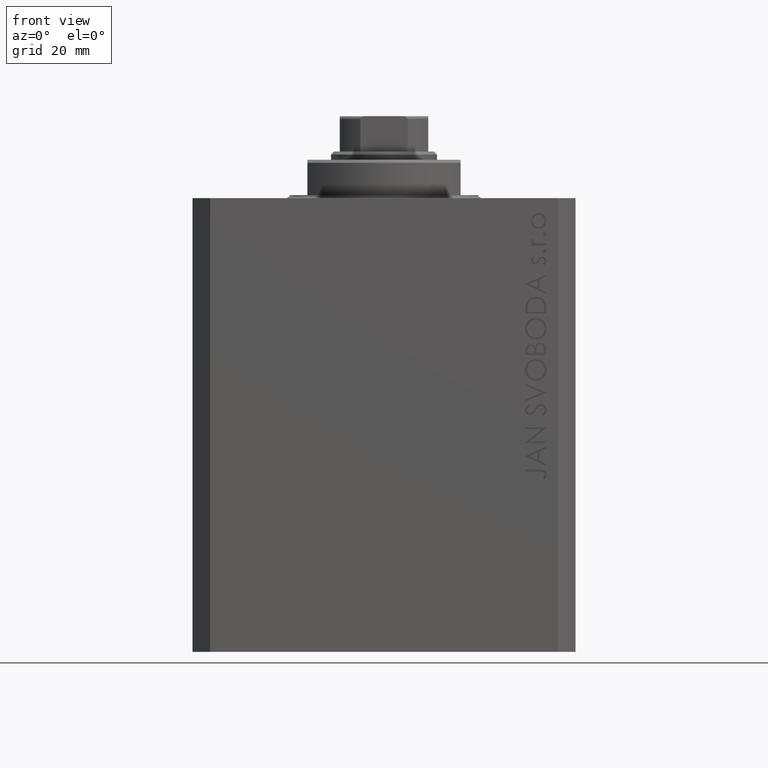
[diagram: clean part render]
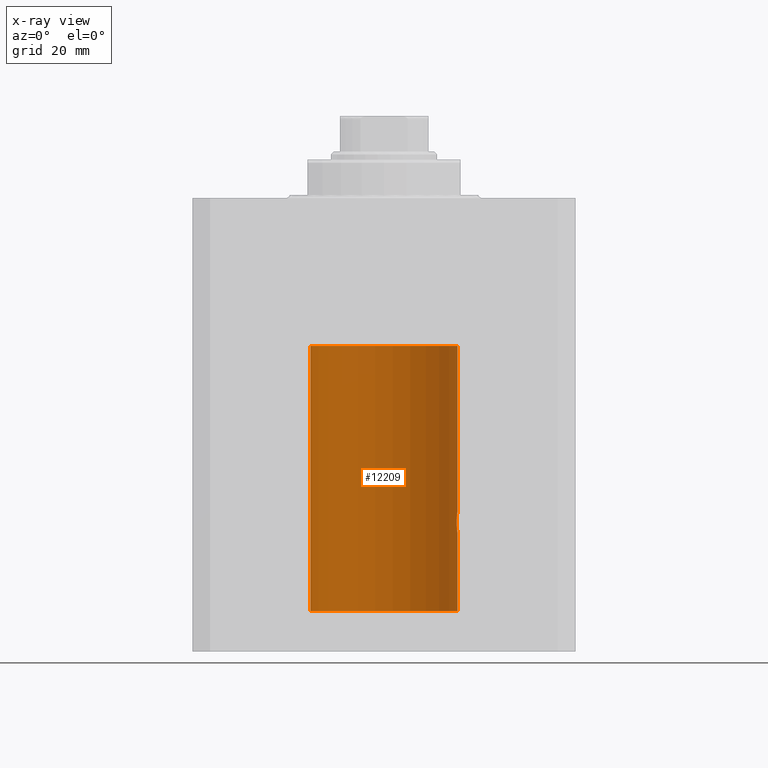
[diagram: x-ray — body ghosted, one internal face saturated and labeled with its STEP entity id]
A machine part, front view, then the same camera in x-ray: the body is ghosted and one INTERNAL B-rep face — a face not visible from any outside direction — is saturated and labeled: STEP entity #12209.
In plain terms, the highlighted cylindrical surface (partial cylindrical patch) has radius 12.5 mm, axis along (0, 0, 1).
Its self-contained STEP definition (entity closure, byte-faithful):
#63 = CARTESIAN_POINT ( 'NONE',  ( 12.49789833780794446, 0.2625555164371062844, -56.98698170822145670 ) ) ;
#77 = CIRCLE ( 'NONE', #847, 12.50000000000000000 ) ;
#248 = CARTESIAN_POINT ( 'NONE',  ( 12.37021546997940113, 1.797317011867410219, -54.11295119741077286 ) ) ;
#847 = AXIS2_PLACEMENT_3D ( 'NONE', #24208, #6041, #13211 ) ;
#3588 = CARTESIAN_POINT ( 'NONE',  ( 12.34924836377099844, 1.935649219704940194, -54.48002062127162759 ) ) ;
#3722 = DIRECTION ( 'NONE',  ( 1.000000000000000000, 0.000000000000000000, 0.000000000000000000 ) ) ;
#3745 = VERTEX_POINT ( 'NONE', #35879 ) ;
#3885 = CARTESIAN_POINT ( 'NONE',  ( 12.43016561391612207, 1.322713721413891319, -56.50578877836699121 ) ) ;
#4223 = EDGE_CURVE ( 'NONE', #22903, #9330, #45205, .T. ) ;
#4986 = CARTESIAN_POINT ( 'NONE',  ( 12.50000000000000000, 0.000000000000000000, -70.09999999999999432 ) ) ;
#5665 = AXIS2_PLACEMENT_3D ( 'NONE', #43595, #36419, #3722 ) ;
#6041 = DIRECTION ( 'NONE',  ( 0.000000000000000000, 0.000000000000000000, 1.000000000000000000 ) ) ;
#7183 = CARTESIAN_POINT ( 'NONE',  ( 12.33896267925302226, 2.000000000000254463, -54.86934705949917657 ) ) ;
#7328 = B_SPLINE_CURVE_WITH_KNOTS ( 'NONE', 3,
 ( #43465, #7183, #21743, #3588, #43930, #248, #14810, #22213, #18386, #44166, #32476, #17929, #22459, #18144, #17701, #46827, #11213, #14120 ),
 .UNSPECIFIED., .F., .F.,
 ( 4, 2, 2, 2, 2, 2, 2, 2, 4 ),
 ( 0.003132244164174471934, 0.003523586189974247697, 0.003914928215774023459, 0.004306270241573798355, 0.004697612267373574985, 0.005088954293173349880, 0.005480296318973125642, 0.005871638344772901405, 0.006262980370572677168 ),
 .UNSPECIFIED. ) ;
#7340 = VERTEX_POINT ( 'NONE', #20286 ) ;
#7467 = CARTESIAN_POINT ( 'NONE',  ( 12.48390005916862755, 0.6457215011736598953, -56.89742771554266199 ) ) ;
#8142 = CARTESIAN_POINT ( 'NONE',  ( 12.50000000000000000, 0.000000000000000000, -70.09999999999999432 ) ) ;
#9234 = VERTEX_POINT ( 'NONE', #32763 ) ;
#9330 = VERTEX_POINT ( 'NONE', #28465 ) ;
#10118 = EDGE_CURVE ( 'NONE', #22903, #3745, #26291, .T. ) ;
#10176 = DIRECTION ( 'NONE',  ( 1.000000000000000000, 0.000000000000000000, 0.000000000000000000 ) ) ;
#10366 = VECTOR ( 'NONE', #27656, 1000.000000000000000 ) ;
#11213 = CARTESIAN_POINT ( 'NONE',  ( 12.50000000000000000, 0.1306079576516681051, -52.99999999999999289 ) ) ;
#12209 = ADVANCED_FACE ( 'NONE', ( #29032 ), #36199, .F. ) ;
#13211 = DIRECTION ( 'NONE',  ( 1.000000000000000000, 0.000000000000000000, 0.000000000000000000 ) ) ;
#14120 = CARTESIAN_POINT ( 'NONE',  ( 12.50000000000000000, -7.266276684081261841E-23, -53.00000000000000000 ) ) ;
#14307 = VERTEX_POINT ( 'NONE', #33695 ) ;
#14628 = CARTESIAN_POINT ( 'NONE',  ( 12.48989642018887736, 0.5185418732824300658, -56.93601292187608465 ) ) ;
#14810 = CARTESIAN_POINT ( 'NONE',  ( 12.37925647381943506, 1.734744884174225898, -53.99620732598648942 ) ) ;
#15534 = VECTOR ( 'NONE', #41312, 1000.000000000000000 ) ;
#15549 = ORIENTED_EDGE ( 'NONE', *, *, #29803, .T. ) ;
#15763 = EDGE_CURVE ( 'NONE', #18019, #9234, #23148, .T. ) ;
#15997 = CARTESIAN_POINT ( 'NONE',  ( -12.50000000000000000, 1.530808498934191127E-15, -70.09999999999999432 ) ) ;
#16234 = AXIS2_PLACEMENT_3D ( 'NONE', #46929, #42647, #10176 ) ;
#16655 = ORIENTED_EDGE ( 'NONE', *, *, #4223, .F. ) ;
#16905 = ORIENTED_EDGE ( 'NONE', *, *, #22912, .F. ) ;
#17632 = ORIENTED_EDGE ( 'NONE', *, *, #21393, .T. ) ;
#17701 = CARTESIAN_POINT ( 'NONE',  ( 12.48983962833819028, 0.5199974825204921602, -53.06435160808016605 ) ) ;
#17929 = CARTESIAN_POINT ( 'NONE',  ( 12.46011632531799407, 1.003644408234889429, -53.26516799687669135 ) ) ;
#17980 = CARTESIAN_POINT ( 'NONE',  ( 12.46901623405143766, 0.8878913781257957716, -56.79689651717549737 ) ) ;
#18019 = VERTEX_POINT ( 'NONE', #22417 ) ;
#18144 = CARTESIAN_POINT ( 'NONE',  ( 12.48395395845270528, 0.6446573166014709644, -53.10222124213520090 ) ) ;
#18386 = CARTESIAN_POINT ( 'NONE',  ( 12.40916530024876963, 1.507117913375724649, -53.67865955049006033 ) ) ;
#20286 = CARTESIAN_POINT ( 'NONE',  ( 12.33896267925302581, 2.000000000000254463, -55.00000000000000000 ) ) ;
#21043 = ORIENTED_EDGE ( 'NONE', *, *, #10118, .T. ) ;
#21335 = CARTESIAN_POINT ( 'NONE',  ( 12.46019522898365217, 1.002712894177341107, -56.73540896027601832 ) ) ;
#21393 = EDGE_CURVE ( 'NONE', #7340, #18019, #7328, .T. ) ;
#21573 = CARTESIAN_POINT ( 'NONE',  ( 12.50000000000000000, -2.972540724237087735E-15, -57.00000000000000000 ) ) ;
#21743 = CARTESIAN_POINT ( 'NONE',  ( 12.34110728646152211, 1.986893050944461780, -54.73661347764981144 ) ) ;
#22213 = CARTESIAN_POINT ( 'NONE',  ( 12.39867611624532806, 1.590019252152835794, -53.77984495929610631 ) ) ;
#22417 = CARTESIAN_POINT ( 'NONE',  ( 12.50000000000000000, -7.266276684081261841E-23, -53.00000000000000000 ) ) ;
#22459 = CARTESIAN_POINT ( 'NONE',  ( 12.46910683544638232, 0.8866026273585058126, -53.20247863689694157 ) ) ;
#22903 = VERTEX_POINT ( 'NONE', #23190 ) ;
#22912 = EDGE_CURVE ( 'NONE', #9330, #14307, #38190, .T. ) ;
#23148 = LINE ( 'NONE', #4986, #10366 ) ;
#23190 = CARTESIAN_POINT ( 'NONE',  ( 12.50000000000000000, 0.000000000000000000, -70.09999999999999432 ) ) ;
#24208 = CARTESIAN_POINT ( 'NONE',  ( 0.000000000000000000, 0.000000000000000000, -25.10000000000000142 ) ) ;
#25166 = CARTESIAN_POINT ( 'NONE',  ( 12.33896267925302759, 2.000000000000254463, -55.26143174220786136 ) ) ;
#25624 = CARTESIAN_POINT ( 'NONE',  ( 12.34779119491631505, 1.947363444907015184, -55.52502775168252924 ) ) ;
#26291 = LINE ( 'NONE', #8142, #15534 ) ;
#27656 = DIRECTION ( 'NONE',  ( -0.000000000000000000, -0.000000000000000000, 1.000000000000000000 ) ) ;
#28465 = CARTESIAN_POINT ( 'NONE',  ( -12.50000000000000000, 1.530808498934191127E-15, -70.09999999999999432 ) ) ;
#28958 = CARTESIAN_POINT ( 'NONE',  ( 12.39869754437269123, 1.598954131913734145, -56.22932152813013573 ) ) ;
#29032 = FACE_OUTER_BOUND ( 'NONE', #40195, .T. ) ;
#29194 = CARTESIAN_POINT ( 'NONE',  ( 12.44079900692650753, 1.220007525301745277, -56.59017579083666760 ) ) ;
#29803 = EDGE_CURVE ( 'NONE', #9234, #14307, #77, .T. ) ;
#32307 = CARTESIAN_POINT ( 'NONE',  ( 12.50000000000000533, 0.1324055009716460785, -57.00000000000003553 ) ) ;
#32476 = CARTESIAN_POINT ( 'NONE',  ( 12.44079117518645461, 1.220047488436375227, -53.40989676335082237 ) ) ;
#32763 = CARTESIAN_POINT ( 'NONE',  ( 12.50000000000000000, 0.000000000000000000, -25.10000000000000142 ) ) ;
#33695 = CARTESIAN_POINT ( 'NONE',  ( -12.50000000000000000, 1.530808498934191127E-15, -25.10000000000000142 ) ) ;
#33760 = B_SPLINE_CURVE_WITH_KNOTS ( 'NONE', 3,
 ( #21573, #32307, #63, #14628, #7467, #17980, #21335, #29194, #3885, #28958, #43298, #25624, #25166, #40159 ),
 .UNSPECIFIED., .F., .F.,
 ( 4, 2, 2, 2, 2, 2, 4 ),
 ( 4.027442422438711134E-18, 0.0003915305205218086665, 0.0007830610410436133215, 0.001174591561565418085, 0.001566122082087222740, 0.002349183123130847445, 0.003132244164174471934 ),
 .UNSPECIFIED. ) ;
#34847 = DIRECTION ( 'NONE',  ( -0.000000000000000000, -0.000000000000000000, 1.000000000000000000 ) ) ;
#35879 = CARTESIAN_POINT ( 'NONE',  ( 12.50000000000000000, -2.972540724237087735E-15, -57.00000000000000000 ) ) ;
#36199 = CYLINDRICAL_SURFACE ( 'NONE', #5665, 12.50000000000000000 ) ;
#36419 = DIRECTION ( 'NONE',  ( -0.000000000000000000, -0.000000000000000000, 1.000000000000000000 ) ) ;
#38190 = LINE ( 'NONE', #15997, #43355 ) ;
#39203 = EDGE_CURVE ( 'NONE', #3745, #7340, #33760, .T. ) ;
#39527 = ORIENTED_EDGE ( 'NONE', *, *, #39203, .T. ) ;
#40159 = CARTESIAN_POINT ( 'NONE',  ( 12.33896267925302581, 2.000000000000254463, -55.00000000000000000 ) ) ;
#40195 = EDGE_LOOP ( 'NONE', ( #16905, #16655, #21043, #39527, #17632, #46153, #15549 ) ) ;
#41312 = DIRECTION ( 'NONE',  ( -0.000000000000000000, -0.000000000000000000, 1.000000000000000000 ) ) ;
#42647 = DIRECTION ( 'NONE',  ( 0.000000000000000000, 0.000000000000000000, 1.000000000000000000 ) ) ;
#43298 = CARTESIAN_POINT ( 'NONE',  ( 12.37760587642916477, 1.747868572747724114, -56.00639653169000098 ) ) ;
#43355 = VECTOR ( 'NONE', #34847, 1000.000000000000000 ) ;
#43465 = CARTESIAN_POINT ( 'NONE',  ( 12.33896267925302581, 2.000000000000254463, -55.00000000000000000 ) ) ;
#43595 = CARTESIAN_POINT ( 'NONE',  ( 0.000000000000000000, 0.000000000000000000, -70.09999999999999432 ) ) ;
#43930 = CARTESIAN_POINT ( 'NONE',  ( 12.35520276972935250, 1.897773362058245761, -54.35528278634336630 ) ) ;
#44166 = CARTESIAN_POINT ( 'NONE',  ( 12.43037348241797879, 1.320834183883846435, -53.49243837704294435 ) ) ;
#45205 = CIRCLE ( 'NONE', #16234, 12.50000000000000000 ) ;
#46153 = ORIENTED_EDGE ( 'NONE', *, *, #15763, .T. ) ;
#46827 = CARTESIAN_POINT ( 'NONE',  ( 12.49788668346400122, 0.2632864803365722595, -53.01308975838332316 ) ) ;
#46929 = CARTESIAN_POINT ( 'NONE',  ( 0.000000000000000000, 0.000000000000000000, -70.09999999999999432 ) ) ;